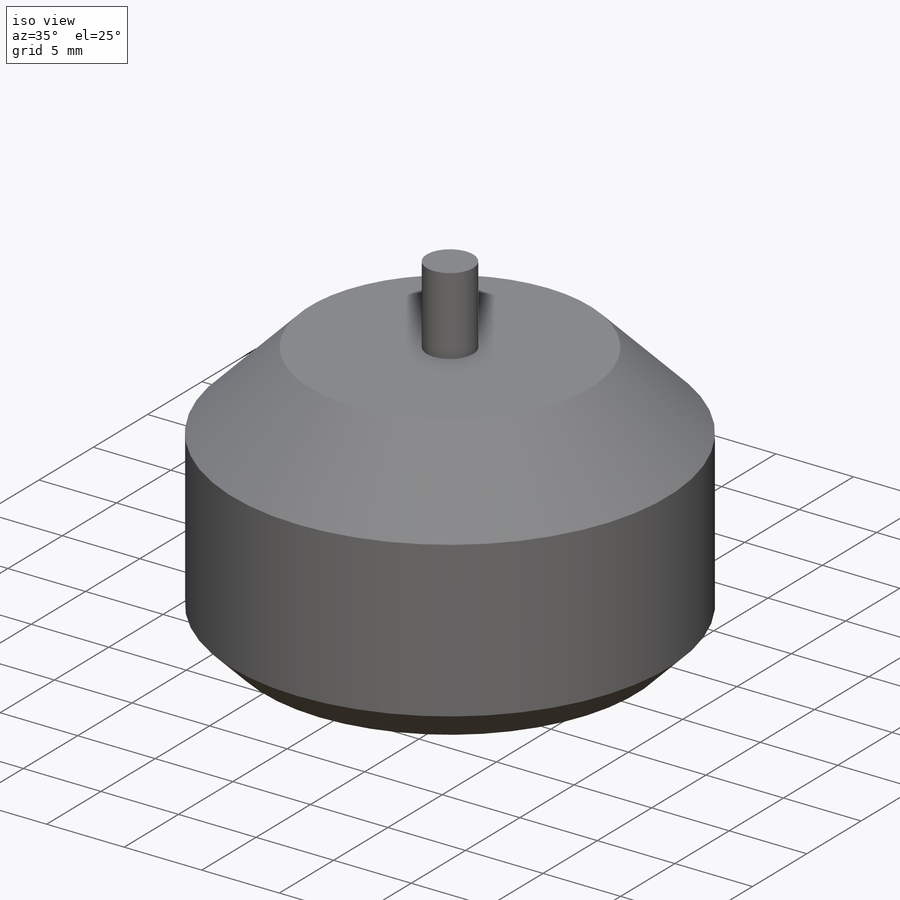
[diagram: iso view]
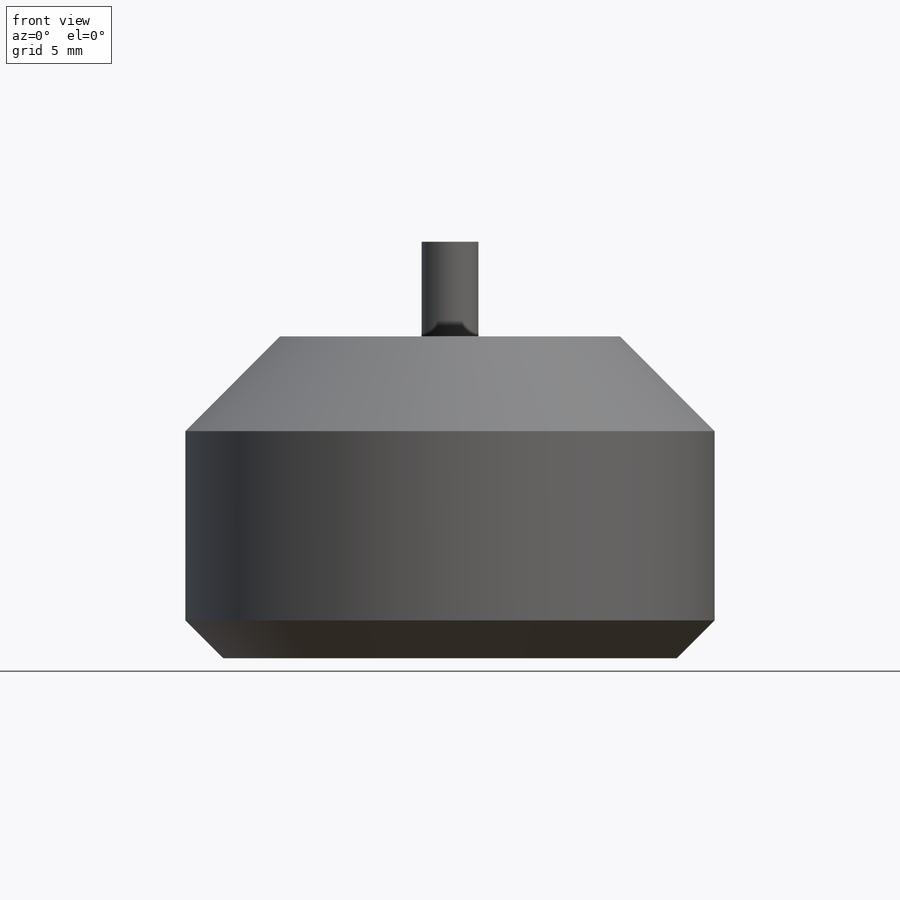
[diagram: front view]
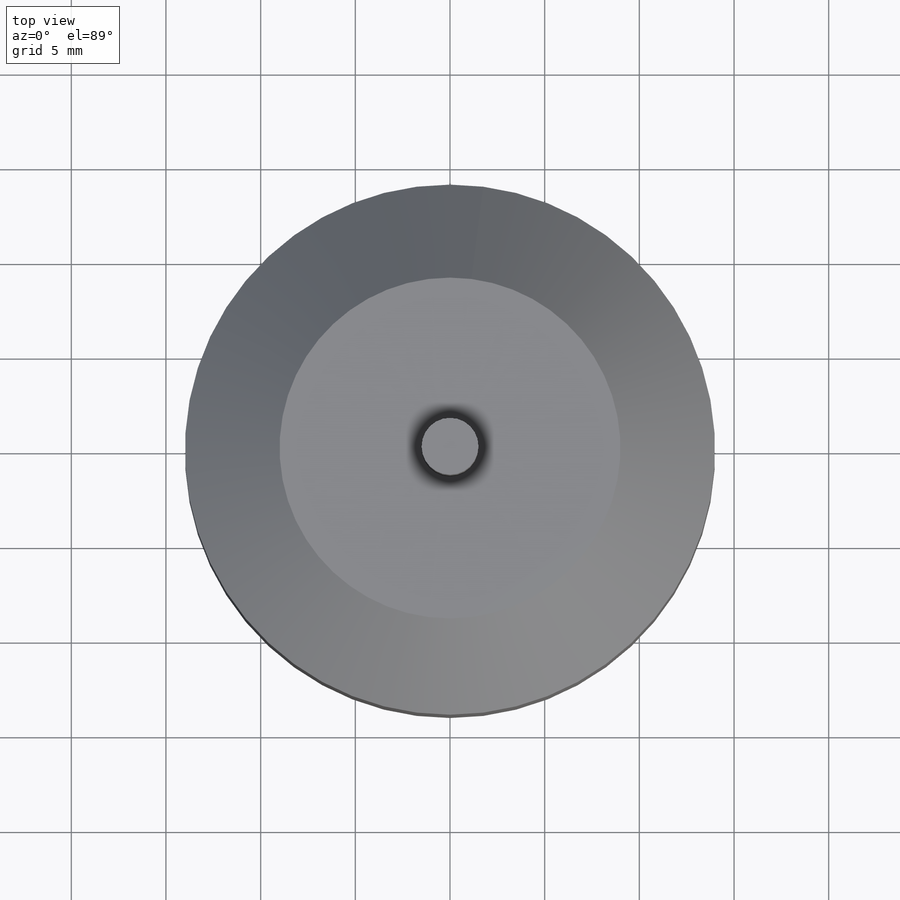
[diagram: top view]
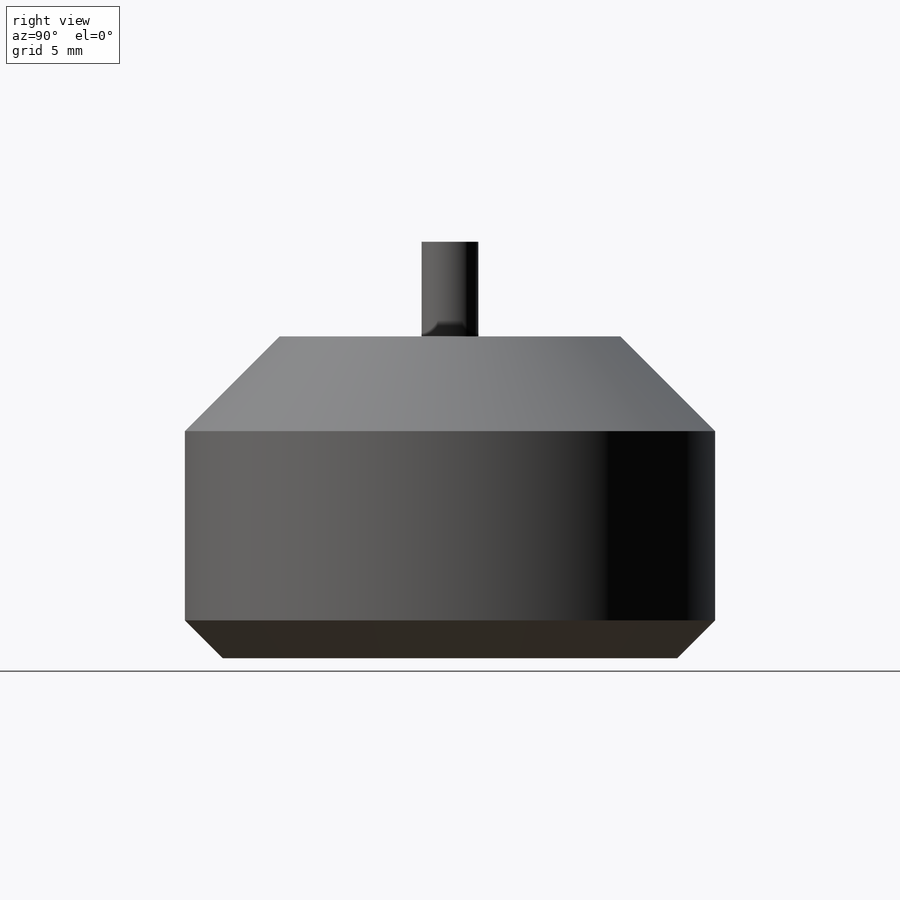
[diagram: right view]
SOLIDWORKS PART (.sldprt)
format: sldprt  version: not decoded by parser v0  size: 186,368 bytes
history: native  units: mm
features: sketch x3, extrude x2, chamfer x2, material x1, cut_extrude x1 (+13 scaffold rows collapsed)
feature tree (22):
  scaffold x13  (default folders/planes/origin — collapsed)
  material  "Material <not specified>"
  sketch  "Sketch1"  dims[D1=~11.371121mm]
  extrude  "Boss-Extrude1"  Depth=17mm
  chamfer  "Chamfer1"  Distance=5mm Angle=45deg
  chamfer  "Chamfer3"  Distance=2mm Angle=45deg
  sketch  "Sketch3"  dims[c1.D1=~1.391591mm c1.D3=~1.041195mm c2.D1=9.5mm c2.D2=9.5mm c2.D3=8.0mm c2.D4=8.0mm]
  cut_extrude  "Cut-Extrude1"  Depth=5mm
  sketch  "Sketch4"  dims[D1=2.5mm]
  extrude  "Boss-Extrude2"  Depth=5mm
decode coverage: 8 of 8 modeling features carry decoded parameters
note: ~ marks probable driven/reference dimensions
note: suppression state not decoded; provenance and decode notes live in map.json
